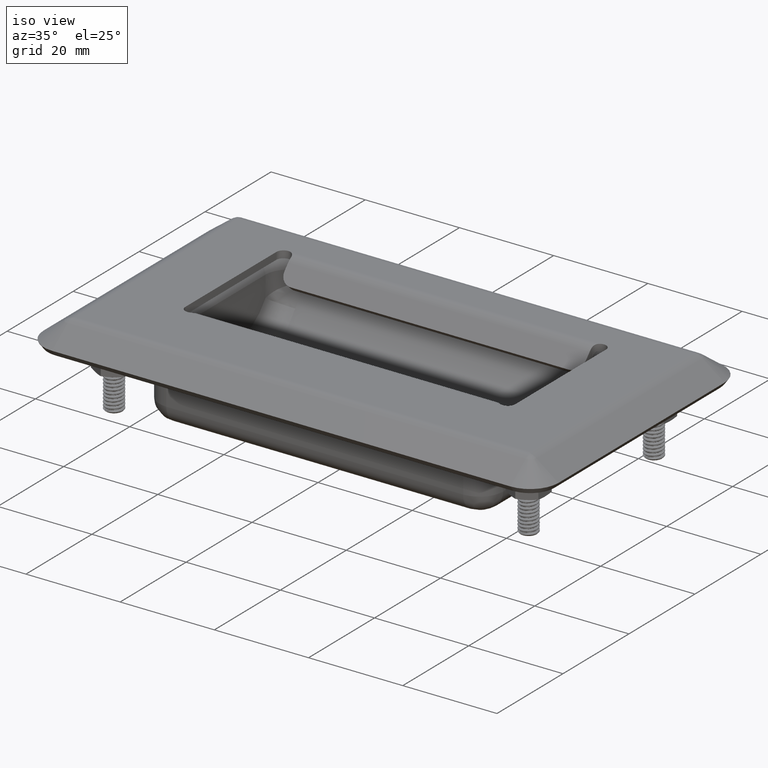
[diagram: clean part render]
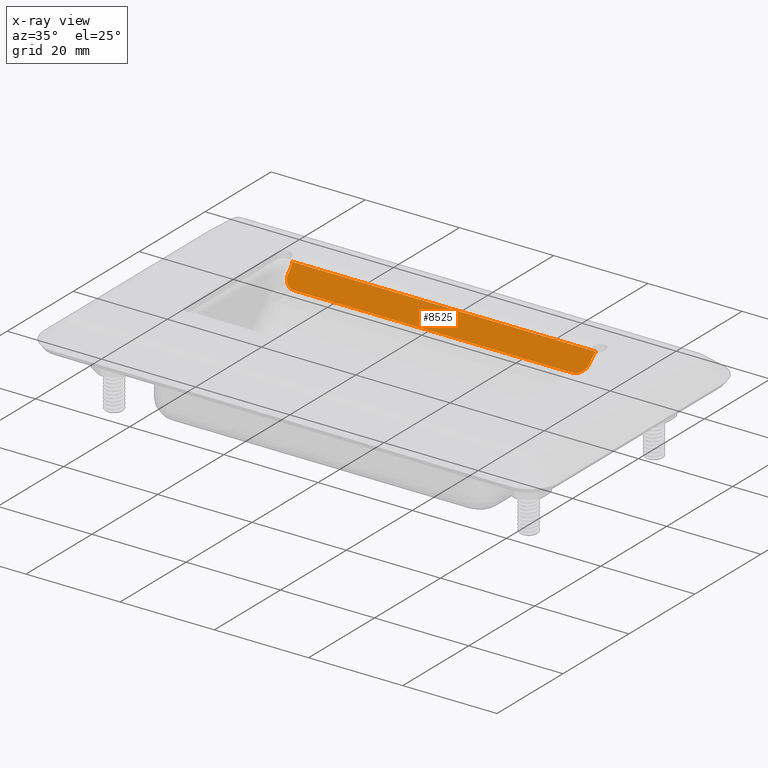
[diagram: x-ray — body ghosted, one internal face saturated and labeled with its STEP entity id]
A machine part, iso view, then the same camera in x-ray: the body is ghosted and one INTERNAL B-rep face — a face not visible from any outside direction — is saturated and labeled: STEP entity #8525.
In plain terms, the highlighted planar face has unit normal (0, 0.7341, -0.679).
Its self-contained STEP definition (entity closure, byte-faithful):
#483=CIRCLE('',#9182,2.5);
#486=CIRCLE('',#9188,2.5);
#589=ELLIPSE('',#9194,2.20899449607977,1.5);
#590=ELLIPSE('',#9199,2.20899449607977,1.5);
#1256=FACE_OUTER_BOUND('',#1789,.T.);
#1789=EDGE_LOOP('',(#7487,#7488,#7489,#7490,#7491,#7492,#7493,#7494));
#2328=LINE('',#21331,#2886);
#2334=LINE('',#21349,#2892);
#2336=LINE('',#21370,#2894);
#2354=LINE('',#21425,#2912);
#2886=VECTOR('',#10967,59.);
#2892=VECTOR('',#10985,1.04984039812435);
#2894=VECTOR('',#10997,1.04984039812435);
#2912=VECTOR('',#11045,64.5201935771144);
#3958=VERTEX_POINT('',#21318);
#3959=VERTEX_POINT('',#21319);
#3963=VERTEX_POINT('',#21329);
#3967=VERTEX_POINT('',#21341);
#3969=VERTEX_POINT('',#21347);
#3970=VERTEX_POINT('',#21351);
#3973=VERTEX_POINT('',#21366);
#3976=VERTEX_POINT('',#21379);
#5151=EDGE_CURVE('',#3958,#3959,#483,.T.);
#5157=EDGE_CURVE('',#3963,#3958,#2328,.T.);
#5163=EDGE_CURVE('',#3967,#3963,#486,.T.);
#5166=EDGE_CURVE('',#3969,#3967,#2334,.T.);
#5171=EDGE_CURVE('',#3973,#3970,#589,.T.);
#5172=EDGE_CURVE('',#3959,#3973,#2336,.T.);
#5177=EDGE_CURVE('',#3969,#3976,#590,.F.);
#5196=EDGE_CURVE('',#3970,#3976,#2354,.T.);
#7487=ORIENTED_EDGE('',*,*,#5151,.F.);
#7488=ORIENTED_EDGE('',*,*,#5157,.F.);
#7489=ORIENTED_EDGE('',*,*,#5163,.F.);
#7490=ORIENTED_EDGE('',*,*,#5166,.F.);
#7491=ORIENTED_EDGE('',*,*,#5177,.T.);
#7492=ORIENTED_EDGE('',*,*,#5196,.F.);
#7493=ORIENTED_EDGE('',*,*,#5171,.F.);
#7494=ORIENTED_EDGE('',*,*,#5172,.F.);
#8051=PLANE('',#9210);
#8525=ADVANCED_FACE('',(#1256),#8051,.T.);
#9182=AXIS2_PLACEMENT_3D('',#21320,#10957,#10958);
#9188=AXIS2_PLACEMENT_3D('',#21343,#10978,#10979);
#9194=AXIS2_PLACEMENT_3D('',#21368,#10993,#10994);
#9199=AXIS2_PLACEMENT_3D('',#21380,#11007,#11008);
#9210=AXIS2_PLACEMENT_3D('',#21424,#11043,#11044);
#10957=DIRECTION('center_axis',(0.,-0.734099439586406,0.679041981617429));
#10958=DIRECTION('ref_axis',(0.707106781186548,-0.480155189912035,-0.519086691796792));
#10967=DIRECTION('',(1.,0.,0.));
#10978=DIRECTION('center_axis',(0.,-0.734099439586406,0.679041981617429));
#10979=DIRECTION('ref_axis',(-0.707106781186548,-0.480155189912035,-0.519086691796792));
#10985=DIRECTION('',(0.,-0.679041981617429,-0.734099439586406));
#10993=DIRECTION('center_axis',(0.,0.734099439586406,-0.679041981617429));
#10994=DIRECTION('ref_axis',(-6.28240035565635E-17,0.679041981617429,0.734099439586406));
#10997=DIRECTION('',(0.,0.679041981617429,0.734099439586406));
#11007=DIRECTION('center_axis',(0.,0.734099439586406,-0.679041981617429));
#11008=DIRECTION('ref_axis',(6.28240035565635E-17,0.679041981617429,0.734099439586406));
#11043=DIRECTION('center_axis',(0.,0.734099439586406,-0.679041981617429));
#11044=DIRECTION('ref_axis',(0.,0.679041981617429,0.734099439586406));
#11045=DIRECTION('',(-1.,-1.78084907129181E-16,-1.92524223923438E-16));
#21318=CARTESIAN_POINT('',(29.5,14.9511491593796,-5.01856297242613));
#21319=CARTESIAN_POINT('',(32.,16.6487541134232,-3.18331437346012));
#21320=CARTESIAN_POINT('Origin',(29.5,16.6487541134232,-3.1833143734601));
#21329=CARTESIAN_POINT('',(-29.5,14.9511491593796,-5.01856297242613));
#21331=CARTESIAN_POINT('',(0.,14.9511491593796,-5.01856297242613));
#21341=CARTESIAN_POINT('',(-32.,16.6487541134232,-3.18331437346012));
#21343=CARTESIAN_POINT('Origin',(-29.5,16.6487541134232,-3.1833143734601));
#21347=CARTESIAN_POINT('',(-32.,17.3616398177476,-2.41262712554188));
#21349=CARTESIAN_POINT('',(-32.,14.9511491593796,-5.01856297242613));
#21351=CARTESIAN_POINT('',(32.2600967885572,18.2058199088738,-1.5));
#21366=CARTESIAN_POINT('',(32.,17.3616398177476,-2.41262712554188));
#21368=CARTESIAN_POINT('Origin',(33.5,17.3616398177476,-2.41262712554188));
#21370=CARTESIAN_POINT('',(32.,14.9511491593796,-5.01856297242613));
#21379=CARTESIAN_POINT('',(-32.2600967885572,18.2058199088738,-1.5));
#21380=CARTESIAN_POINT('Origin',(-33.5,17.3616398177476,-2.41262712554188));
#21424=CARTESIAN_POINT('Origin',(0.,14.9511491593796,-5.01856297242613));
#21425=CARTESIAN_POINT('',(-20.,18.2058199088738,-1.5));